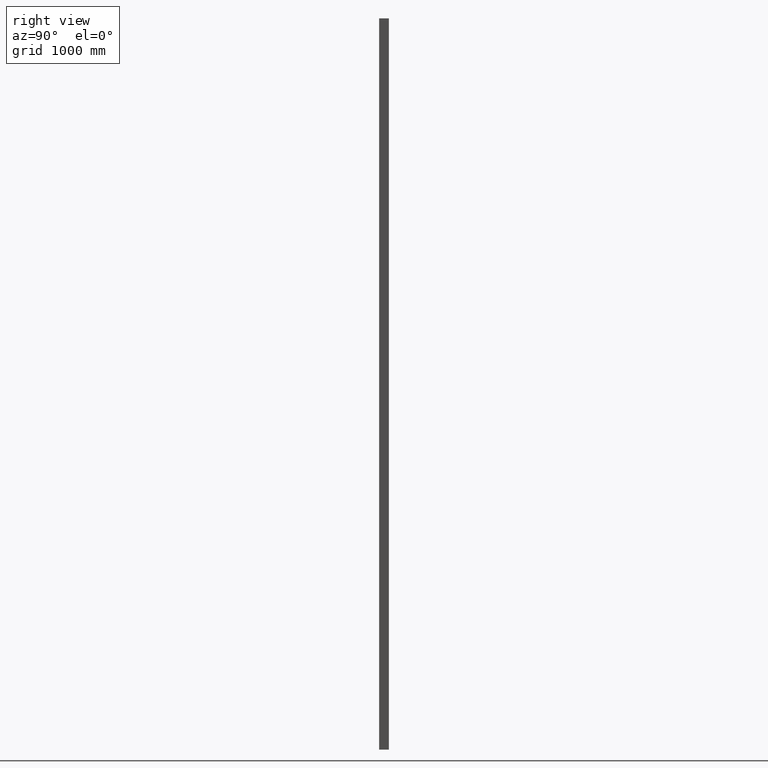
[diagram: clean part render]
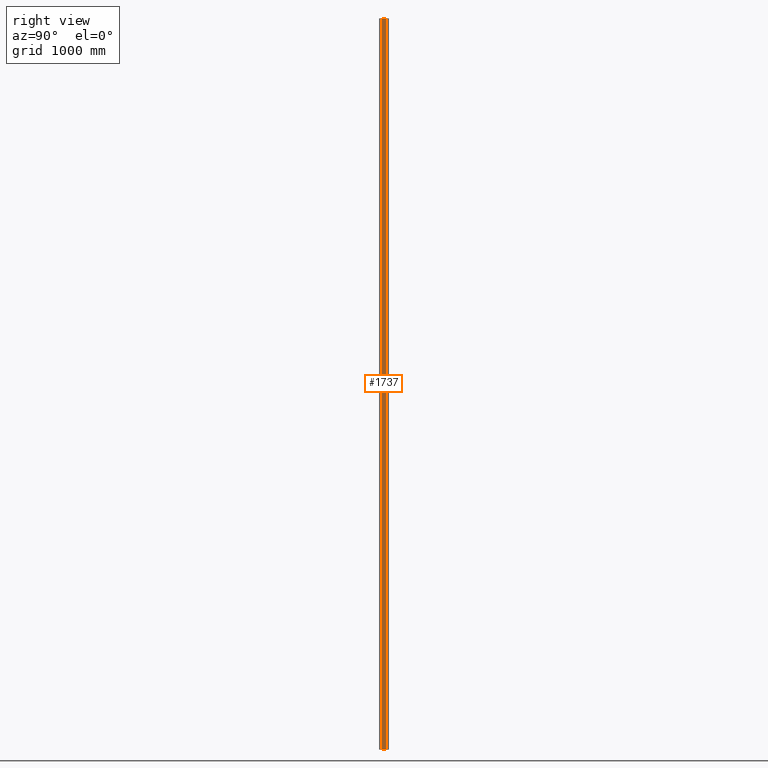
[diagram: same view with one face highlighted and labeled with its STEP entity id]
A machine part, right view. The second image highlights one B-rep face of the part: STEP entity #1737.
In plain terms, the highlighted planar face has unit normal (1, -0, 0).
Its self-contained STEP definition (entity closure, byte-faithful):
#97 = EDGE_LOOP ( 'NONE', ( #291, #292, #293, #295 ) ) ;
#291 = ORIENTED_EDGE ( 'NONE', *, *, #2494, .F. ) ;
#292 = ORIENTED_EDGE ( 'NONE', *, *, #2493, .T. ) ;
#293 = ORIENTED_EDGE ( 'NONE', *, *, #2495, .T. ) ;
#295 = ORIENTED_EDGE ( 'NONE', *, *, #2496, .F. ) ;
#484 = CARTESIAN_POINT ( 'NONE',  ( 20.00000000000000000, 16.00000000000000000, -3000.000000000000000 ) ) ;
#485 = DIRECTION ( 'NONE',  ( -0.0000000000000000000, -0.0000000000000000000, 1.000000000000000000 ) ) ;
#486 = CARTESIAN_POINT ( 'NONE',  ( 20.00000000000000000, 0.0000000000000000000, -6000.000000000000000 ) ) ;
#487 = DIRECTION ( 'NONE',  ( -0.0000000000000000000, -1.000000000000000000, -0.0000000000000000000 ) ) ;
#488 = CARTESIAN_POINT ( 'NONE',  ( 20.00000000000000000, 0.0000000000000000000, 0.0000000000000000000 ) ) ;
#489 = DIRECTION ( 'NONE',  ( -0.0000000000000000000, -1.000000000000000000, -0.0000000000000000000 ) ) ;
#490 = CARTESIAN_POINT ( 'NONE',  ( 20.00000000000000000, -16.00000000000000000, -3000.000000000000000 ) ) ;
#491 = DIRECTION ( 'NONE',  ( 0.0000000000000000000, 0.0000000000000000000, 1.000000000000000000 ) ) ;
#1196 = AXIS2_PLACEMENT_3D ( 'NONE', #2760, #2761, #2762 ) ;
#1737 = ADVANCED_FACE ( 'NONE', ( #2451 ), #2759, .T. ) ;
#1854 = VERTEX_POINT ( 'NONE', #2866 ) ;
#1855 = VERTEX_POINT ( 'NONE', #2867 ) ;
#1856 = VERTEX_POINT ( 'NONE', #2868 ) ;
#1857 = VERTEX_POINT ( 'NONE', #2869 ) ;
#2451 = FACE_OUTER_BOUND ( 'NONE', #97, .T. ) ;
#2493 = EDGE_CURVE ( 'NONE', #1854, #1855, #2551, .T. ) ;
#2494 = EDGE_CURVE ( 'NONE', #1854, #1856, #2553, .T. ) ;
#2495 = EDGE_CURVE ( 'NONE', #1855, #1857, #2555, .T. ) ;
#2496 = EDGE_CURVE ( 'NONE', #1856, #1857, #2557, .T. ) ;
#2551 = LINE ( 'NONE', #484, #2552 ) ;
#2552 = VECTOR ( 'NONE', #485, 1000.000000000000000 ) ;
#2553 = LINE ( 'NONE', #486, #2554 ) ;
#2554 = VECTOR ( 'NONE', #487, 1000.000000000000000 ) ;
#2555 = LINE ( 'NONE', #488, #2556 ) ;
#2556 = VECTOR ( 'NONE', #489, 1000.000000000000000 ) ;
#2557 = LINE ( 'NONE', #490, #2558 ) ;
#2558 = VECTOR ( 'NONE', #491, 1000.000000000000000 ) ;
#2759 = PLANE ( 'NONE',  #1196 ) ;
#2760 = CARTESIAN_POINT ( 'NONE',  ( 20.00000000000000000, -16.00000000000000000, 0.0000000000000000000 ) ) ;
#2761 = DIRECTION ( 'NONE',  ( 1.000000000000000000, -0.0000000000000000000, 0.0000000000000000000 ) ) ;
#2762 = DIRECTION ( 'NONE',  ( 0.0000000000000000000, 0.0000000000000000000, -1.000000000000000000 ) ) ;
#2866 = CARTESIAN_POINT ( 'NONE',  ( 20.00000000000000000, 16.00000000000000000, -6000.000000000000000 ) ) ;
#2867 = CARTESIAN_POINT ( 'NONE',  ( 20.00000000000000000, 16.00000000000000000, 0.0000000000000000000 ) ) ;
#2868 = CARTESIAN_POINT ( 'NONE',  ( 20.00000000000000000, -16.00000000000000000, -6000.000000000000000 ) ) ;
#2869 = CARTESIAN_POINT ( 'NONE',  ( 20.00000000000000000, -16.00000000000000000, 0.0000000000000000000 ) ) ;